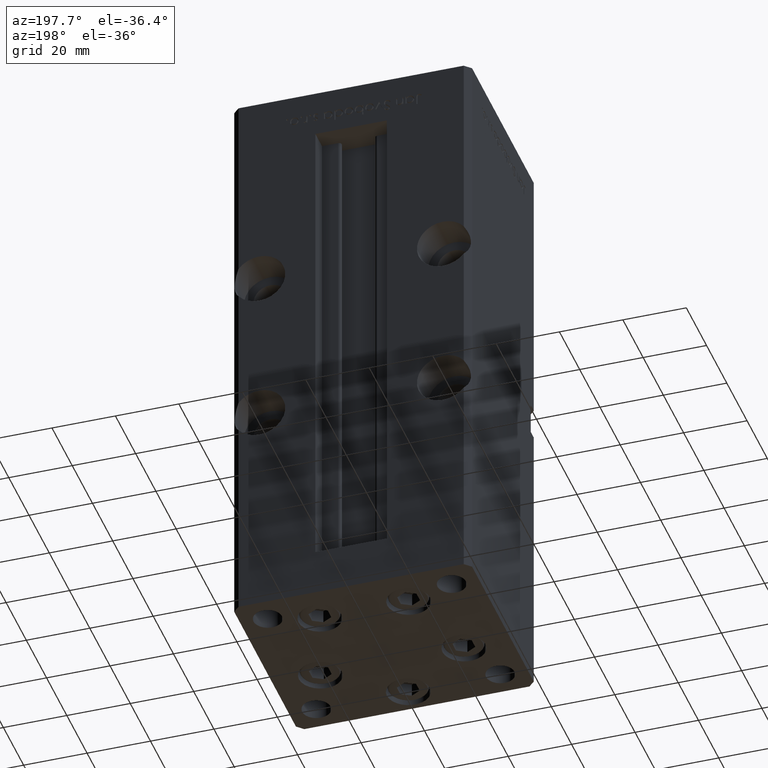
[diagram: clean part render]
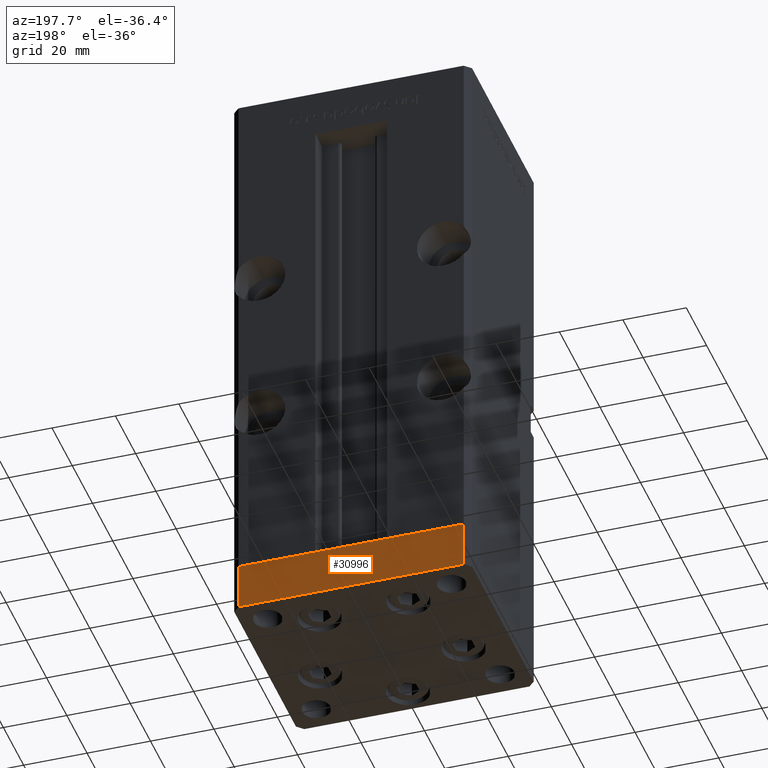
[diagram: same view with one face highlighted and labeled with its STEP entity id]
A machine part, auxiliary view. The second image highlights one B-rep face of the part: STEP entity #30996.
In plain terms, the highlighted planar face has unit normal (-0, 1, 0).
Its self-contained STEP definition (entity closure, byte-faithful):
#728 = LINE ( 'NONE', #17399, #12828 ) ;
#1240 = LINE ( 'NONE', #4739, #8253 ) ;
#4739 = CARTESIAN_POINT ( 'NONE',  ( 35.49999999999992184, 32.50000000000000711, 0.000000000000000000 ) ) ;
#7441 = EDGE_CURVE ( 'NONE', #36610, #40049, #1240, .T. ) ;
#8012 = VERTEX_POINT ( 'NONE', #49719 ) ;
#8253 = VECTOR ( 'NONE', #45867, 1000.000000000000000 ) ;
#8531 = CARTESIAN_POINT ( 'NONE',  ( -35.50000000000002842, 32.49999999999999289, 0.000000000000000000 ) ) ;
#9201 = DIRECTION ( 'NONE',  ( -1.000000000000000000, -1.954618001100629052E-16, 0.000000000000000000 ) ) ;
#9757 = CARTESIAN_POINT ( 'NONE',  ( 35.49999999999992184, 32.50000000000000711, -15.00000000000000000 ) ) ;
#11561 = FACE_OUTER_BOUND ( 'NONE', #13133, .T. ) ;
#12828 = VECTOR ( 'NONE', #17132, 1000.000000000000000 ) ;
#13133 = EDGE_LOOP ( 'NONE', ( #18037, #27901, #37907, #38989 ) ) ;
#14807 = CARTESIAN_POINT ( 'NONE',  ( 35.49999999999992184, 32.50000000000000711, -15.00000000000000000 ) ) ;
#15513 = CARTESIAN_POINT ( 'NONE',  ( -35.50000000000002842, 32.49999999999999289, -15.00000000000000000 ) ) ;
#17132 = DIRECTION ( 'NONE',  ( 0.000000000000000000, 0.000000000000000000, 1.000000000000000000 ) ) ;
#17399 = CARTESIAN_POINT ( 'NONE',  ( 35.49999999999992184, 32.50000000000000711, -15.00000000000000000 ) ) ;
#18037 = ORIENTED_EDGE ( 'NONE', *, *, #7441, .F. ) ;
#18828 = DIRECTION ( 'NONE',  ( -1.954618001100629052E-16, 1.000000000000000000, 0.000000000000000000 ) ) ;
#19095 = AXIS2_PLACEMENT_3D ( 'NONE', #14807, #18828, #44351 ) ;
#20346 = VERTEX_POINT ( 'NONE', #15513 ) ;
#25934 = VECTOR ( 'NONE', #9201, 1000.000000000000000 ) ;
#27901 = ORIENTED_EDGE ( 'NONE', *, *, #49993, .F. ) ;
#27964 = PLANE ( 'NONE',  #19095 ) ;
#28908 = EDGE_CURVE ( 'NONE', #8012, #20346, #30450, .T. ) ;
#30450 = LINE ( 'NONE', #9757, #25934 ) ;
#30996 = ADVANCED_FACE ( 'NONE', ( #11561 ), #27964, .T. ) ;
#31531 = DIRECTION ( 'NONE',  ( 0.000000000000000000, 0.000000000000000000, 1.000000000000000000 ) ) ;
#35589 = LINE ( 'NONE', #51973, #41982 ) ;
#36610 = VERTEX_POINT ( 'NONE', #40486 ) ;
#37907 = ORIENTED_EDGE ( 'NONE', *, *, #28908, .T. ) ;
#38989 = ORIENTED_EDGE ( 'NONE', *, *, #49707, .T. ) ;
#40049 = VERTEX_POINT ( 'NONE', #8531 ) ;
#40486 = CARTESIAN_POINT ( 'NONE',  ( 35.49999999999992184, 32.50000000000000711, 0.000000000000000000 ) ) ;
#41982 = VECTOR ( 'NONE', #31531, 1000.000000000000000 ) ;
#44351 = DIRECTION ( 'NONE',  ( -1.000000000000000000, -1.954618001100629052E-16, 0.000000000000000000 ) ) ;
#45867 = DIRECTION ( 'NONE',  ( -1.000000000000000000, -1.954618001100629052E-16, 0.000000000000000000 ) ) ;
#49707 = EDGE_CURVE ( 'NONE', #20346, #40049, #35589, .T. ) ;
#49719 = CARTESIAN_POINT ( 'NONE',  ( 35.49999999999992184, 32.50000000000000711, -15.00000000000000000 ) ) ;
#49993 = EDGE_CURVE ( 'NONE', #8012, #36610, #728, .T. ) ;
#51973 = CARTESIAN_POINT ( 'NONE',  ( -35.50000000000002842, 32.49999999999999289, -15.00000000000000000 ) ) ;